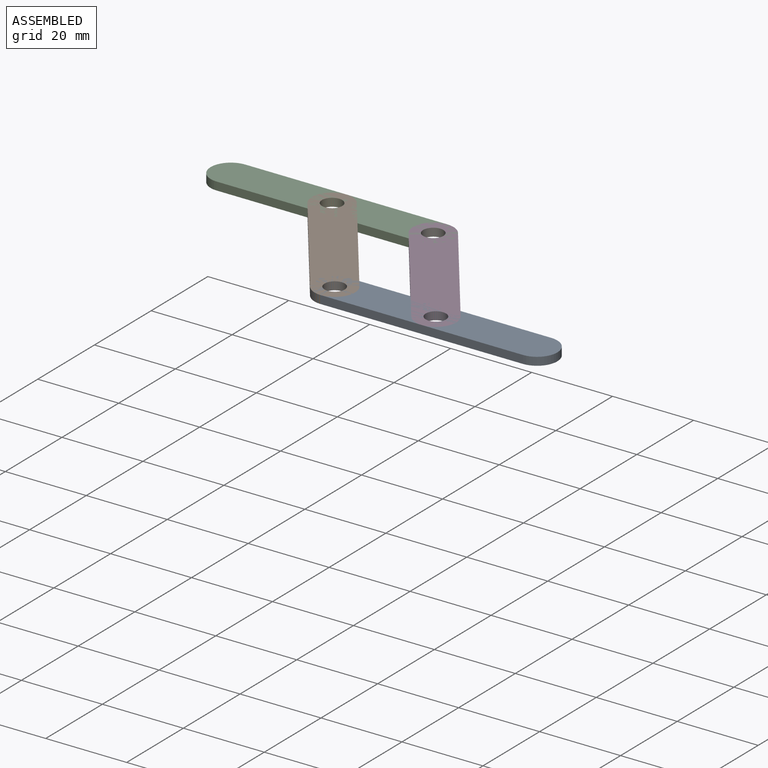
[diagram: assembled view]
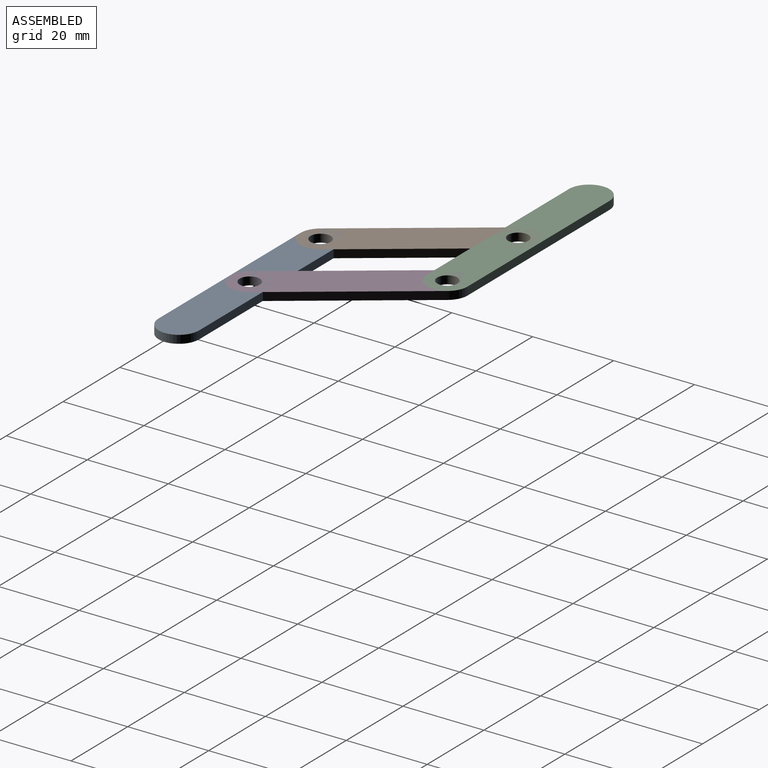
[diagram: assembled view, second angle]
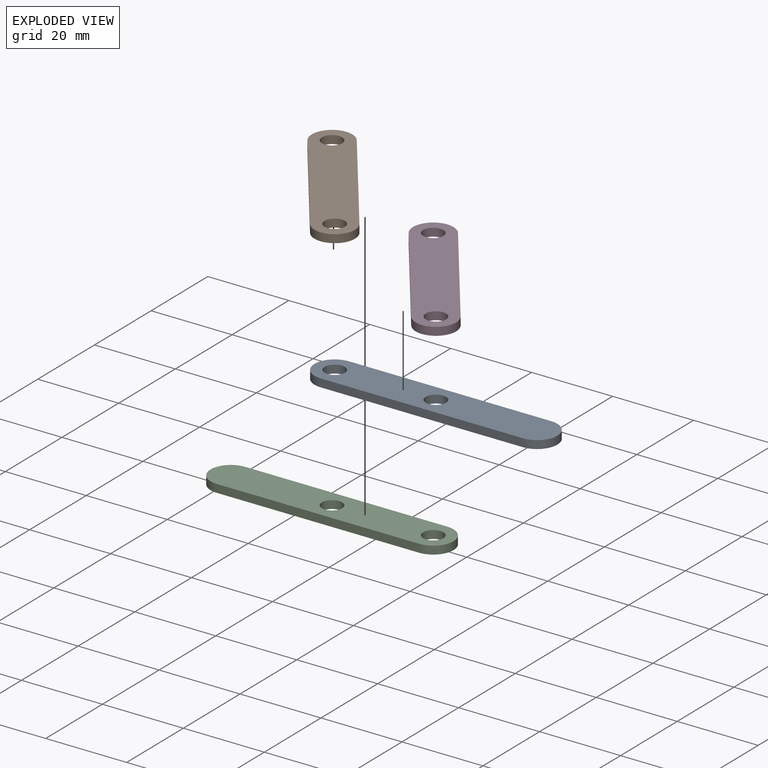
[diagram: exploded view]
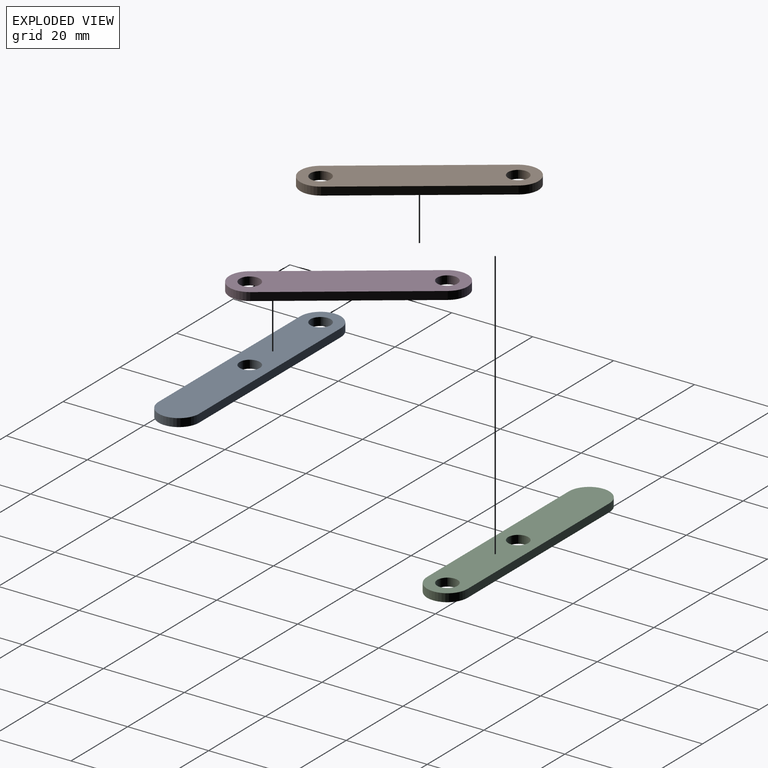
[diagram: exploded view, second angle]
ASSEMBLY  parts=4 mates=8
PART A: 8 faces, bbox 60x10x2 mm
  f0: plane 50x2mm, normal (0,-1,0), area 100mm2, adj f1,f4,f6,f7
  f1: cylinder r=5mm len=10mm, axis (0,0,-1), area 31.4mm2, adj f0,f2,f6,f7
  f2: plane 50x2mm, normal (0,1,0), area 100mm2, adj f1,f4,f6,f7
  f3: cylinder r=2.5mm len=5mm, axis (0,0,-1), area 31.4mm2, adj f6,f7
  f4: cylinder r=5mm len=10mm, axis (0,0,-1), area 31.4mm2, adj f0,f2,f6,f7
  f5: cylinder r=2.5mm len=5mm, axis (0,0,-1), area 31.4mm2, adj f6,f7
  f6: plane 60x10mm, normal (0,0,1), area 539.3mm2, adj f0,f1,f2,f3,f4,f5
  f7: plane 60x10mm, normal (0,0,-1), area 539.3mm2, adj f0,f1,f2,f3,f4,f5
PART B: 8 faces, bbox 10x50x2 mm
  f0: plane 40x2mm, normal (1,0,0), area 80mm2, adj f1,f4,f6,f7
  f1: cylinder r=5mm len=10mm, axis (0,0,-1), area 31.4mm2, adj f0,f2,f6,f7
  f2: plane 40x2mm, normal (-1,0,0), area 80mm2, adj f1,f4,f6,f7
  f3: cylinder r=2.5mm len=5mm, axis (0,0,-1), area 31.4mm2, adj f6,f7
  f4: cylinder r=5mm len=10mm, axis (0,0,-1), area 31.4mm2, adj f0,f2,f6,f7
  f5: cylinder r=2.5mm len=5mm, axis (0,0,-1), area 31.4mm2, adj f6,f7
  f6: plane 50x10mm, normal (0,0,1), area 439.3mm2, adj f0,f1,f2,f3,f4,f5
  f7: plane 50x10mm, normal (0,0,-1), area 439.3mm2, adj f0,f1,f2,f3,f4,f5
PART C: 8 faces, bbox 60x10x2 mm
  f0: plane 50x2mm, normal (0,-1,0), area 100mm2, adj f1,f4,f6,f7
  f1: cylinder r=5mm len=10mm, axis (0,0,-1), area 31.4mm2, adj f0,f2,f6,f7
  f2: plane 50x2mm, normal (0,1,0), area 100mm2, adj f1,f4,f6,f7
  f3: cylinder r=2.5mm len=5mm, axis (0,0,-1), area 31.4mm2, adj f6,f7
  f4: cylinder r=5mm len=10mm, axis (0,0,-1), area 31.4mm2, adj f0,f2,f6,f7
  f5: cylinder r=2.5mm len=5mm, axis (0,0,-1), area 31.4mm2, adj f6,f7
  f6: plane 60x10mm, normal (0,0,1), area 539.3mm2, adj f0,f1,f2,f3,f4,f5
  f7: plane 60x10mm, normal (0,0,-1), area 539.3mm2, adj f0,f1,f2,f3,f4,f5
PART D: same geometry as B
PLACE A t=(81.43,-14.34,-55.91)mm
PLACE B rot(axis=(0,0,1),35.8deg) t=(8.05,18.11,-55.91)mm
PLACE C t=(33.05,18.11,-55.91)mm fixed
PLACE D rot(axis=(0,0,1),35.8deg) t=(33.05,18.11,-55.91)mm
MATE parallel B.f6 <-> A.f7  axis (0,0,1) through (19.74,1.88,-53.91)mm
MATE revolute C.f5 <-> B.f3  axis (0,0,-1) through (8.05,18.11,-54.91)mm
MATE revolute D.f3 <-> C.f3  axis (0,0,-1) through (33.05,18.11,-54.91)mm
MATE revolute A.f3 <-> B.f4  axis (0,0,-1) through (31.43,-14.34,-54.91)mm
MATE parallel A.f7 <-> D.f6  axis (0,0,-1) through (57.34,-14.34,-55.91)mm
MATE parallel C.f7 <-> D.f6  axis (0,0,-1) through (7.14,18.11,-55.91)mm
MATE revolute A.f5 <-> D.f4  axis (0,0,-1) through (56.43,-14.34,-54.91)mm
MATE parallel B.f6 <-> C.f7  axis (0,0,1) through (19.74,1.88,-53.91)mm
